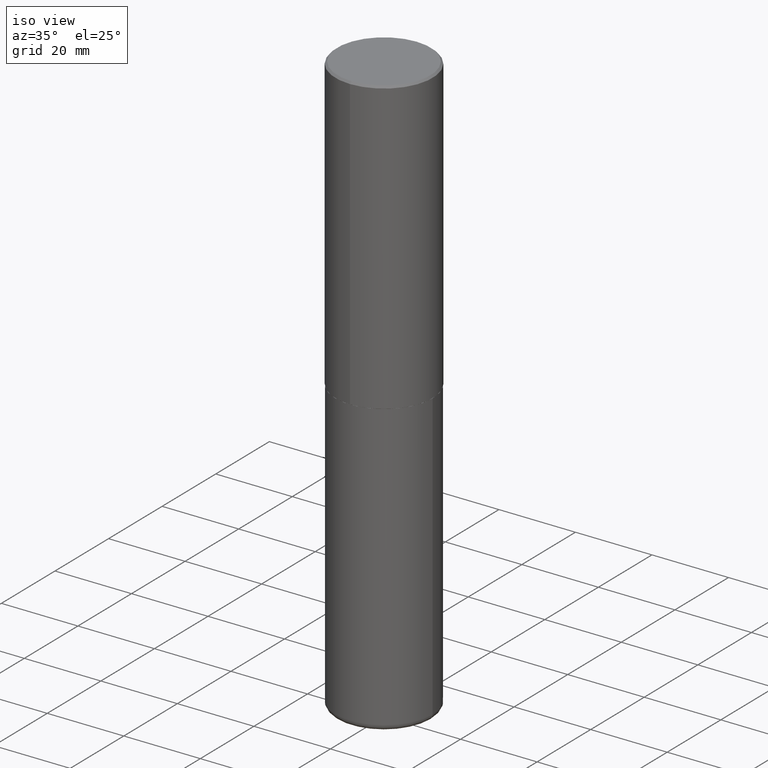
[diagram: clean part render]
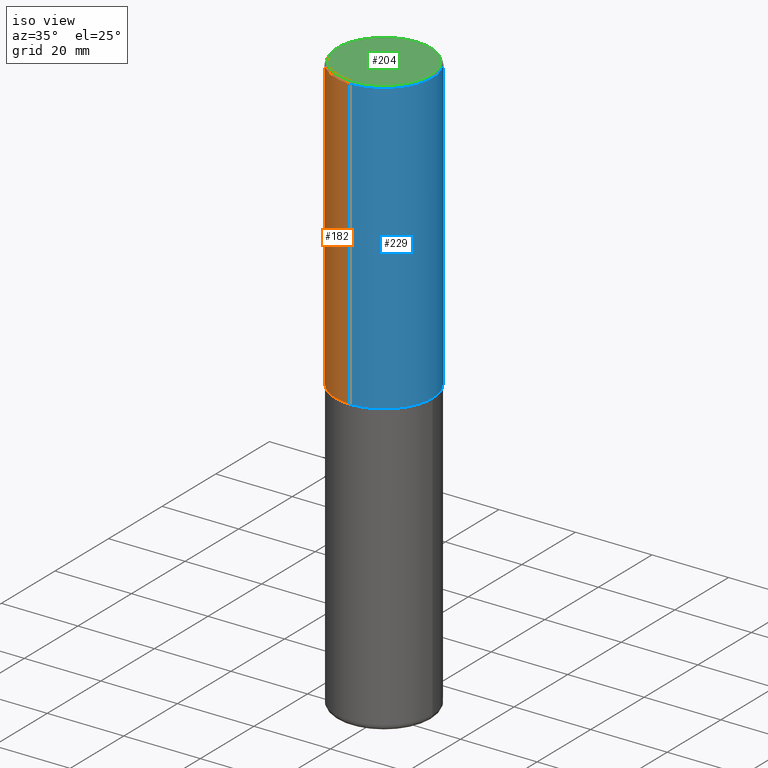
[diagram: same view with three faces highlighted in distinct colors, each labeled with its STEP entity id]
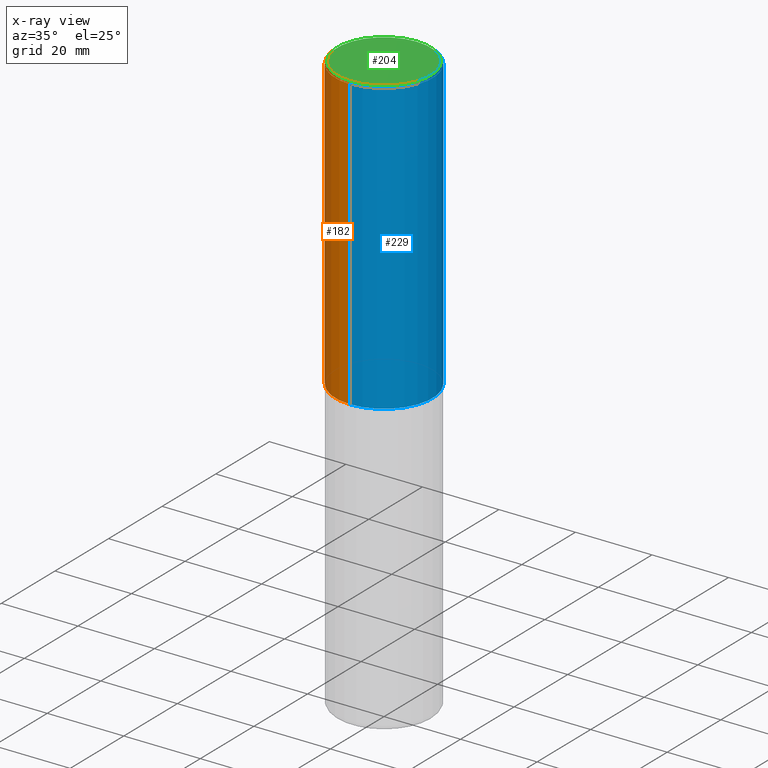
[diagram: x-ray of the same camera — body ghosted, the three highlighted faces saturated]
A machine part, iso view with three faces highlighted in distinct colors.
The next image is the same camera in x-ray (body ghosted, the three faces saturated) — at least one of them is partly hidden behind the body in this view.
Their STEP definitions:

[orange] entity #182 — the highlighted cylindrical surface (partial cylindrical patch) has radius 12.7 mm, axis along (-0, 0, 1).
#15 = CARTESIAN_POINT ( 'NONE',  ( -3.491481338843133750E-15, -0.5000000000000001110, 1.746149358764313390E-15 ) ) ;
#17 = CARTESIAN_POINT ( 'NONE',  ( 3.491481338843133355E-15, 0.4999999999999999445, -0.02000000000000185310 ) ) ;
#26 = EDGE_LOOP ( 'NONE', ( #106, #315, #75, #318 ) ) ;
#27 = DIRECTION ( 'NONE',  ( -2.444898033699712212E-29, 3.492298717528625990E-15, 1.000000000000000000 ) ) ;
#36 = VERTEX_POINT ( 'NONE', #304 ) ;
#65 = FACE_OUTER_BOUND ( 'NONE', #26, .T. ) ;
#74 = CARTESIAN_POINT ( 'NONE',  ( -3.491481338843061569E-15, -0.5000000000000107692, -2.998999999999998778 ) ) ;
#75 = ORIENTED_EDGE ( 'NONE', *, *, #90, .T. ) ;
#87 = CIRCLE ( 'NONE', #134, 0.5000000000000000000 ) ;
#90 = EDGE_CURVE ( 'NONE', #256, #36, #217, .T. ) ;
#106 = ORIENTED_EDGE ( 'NONE', *, *, #160, .F. ) ;
#109 = CARTESIAN_POINT ( 'NONE',  ( 3.552713678800539584E-15, 0.4999999999999898970, -2.999000000000001886 ) ) ;
#124 = CARTESIAN_POINT ( 'NONE',  ( 0.000000000000000000, 0.000000000000000000, 0.000000000000000000 ) ) ;
#127 = DIRECTION ( 'NONE',  ( -2.444898033699712212E-29, 3.492298717528625990E-15, 1.000000000000000000 ) ) ;
#134 = AXIS2_PLACEMENT_3D ( 'NONE', #374, #27, #376 ) ;
#140 = DIRECTION ( 'NONE',  ( -2.444898033699712212E-29, 3.492298717528625990E-15, 1.000000000000000000 ) ) ;
#144 = CARTESIAN_POINT ( 'NONE',  ( 3.552713678800501718E-15, 0.5000000000000001110, -1.746149358764313390E-15 ) ) ;
#154 = VECTOR ( 'NONE', #326, 39.37007874015748143 ) ;
#160 = EDGE_CURVE ( 'NONE', #165, #255, #306, .T. ) ;
#165 = VERTEX_POINT ( 'NONE', #109 ) ;
#166 = EDGE_CURVE ( 'NONE', #255, #36, #87, .T. ) ;
#182 = ADVANCED_FACE ( 'NONE', ( #65 ), #198, .T. ) ;
#187 = DIRECTION ( 'NONE',  ( -2.444898033699711931E-29, 3.492298717528626385E-15, 1.000000000000000000 ) ) ;
#198 = CYLINDRICAL_SURFACE ( 'NONE', #202, 0.5000000000000001110 ) ;
#202 = AXIS2_PLACEMENT_3D ( 'NONE', #124, #127, #258 ) ;
#206 = CARTESIAN_POINT ( 'NONE',  ( 7.332249203065438921E-29, -1.047340385386834930E-14, -2.999000000000000554 ) ) ;
#217 = LINE ( 'NONE', #15, #154 ) ;
#255 = VERTEX_POINT ( 'NONE', #17 ) ;
#256 = VERTEX_POINT ( 'NONE', #74 ) ;
#258 = DIRECTION ( 'NONE',  ( -6.982962677686265922E-15, -1.000000000000000000, 3.492298717528625990E-15 ) ) ;
#286 = AXIS2_PLACEMENT_3D ( 'NONE', #206, #140, #302 ) ;
#297 = CIRCLE ( 'NONE', #286, 0.5000000000000002220 ) ;
#299 = VECTOR ( 'NONE', #187, 39.37007874015748143 ) ;
#302 = DIRECTION ( 'NONE',  ( -6.982962677686266711E-15, -1.000000000000000000, 3.278217592397114284E-15 ) ) ;
#304 = CARTESIAN_POINT ( 'NONE',  ( -3.430248998885764992E-15, -0.5000000000000001110, -0.01999999999999835937 ) ) ;
#306 = LINE ( 'NONE', #144, #299 ) ;
#315 = ORIENTED_EDGE ( 'NONE', *, *, #334, .T. ) ;
#318 = ORIENTED_EDGE ( 'NONE', *, *, #166, .F. ) ;
#326 = DIRECTION ( 'NONE',  ( -2.444898033699711931E-29, 3.492298717528626385E-15, 1.000000000000000000 ) ) ;
#334 = EDGE_CURVE ( 'NONE', #165, #256, #297, .T. ) ;
#374 = CARTESIAN_POINT ( 'NONE',  ( 4.889796067399450837E-31, -6.984597435057287381E-17, -0.02000000000000010797 ) ) ;
#376 = DIRECTION ( 'NONE',  ( -6.982962677686265922E-15, -1.000000000000000000, 3.491643216902136408E-15 ) ) ;

[blue] entity #229 — the highlighted cylindrical surface (partial cylindrical patch) has radius 12.7 mm, axis along (-0, 0, 1).
#7 = EDGE_LOOP ( 'NONE', ( #361, #119, #196, #91 ) ) ;
#15 = CARTESIAN_POINT ( 'NONE',  ( -3.491481338843133750E-15, -0.5000000000000001110, 1.746149358764313390E-15 ) ) ;
#17 = CARTESIAN_POINT ( 'NONE',  ( 3.491481338843133355E-15, 0.4999999999999999445, -0.02000000000000185310 ) ) ;
#36 = VERTEX_POINT ( 'NONE', #304 ) ;
#61 = DIRECTION ( 'NONE',  ( -2.444898033699712212E-29, 3.492298717528625990E-15, 1.000000000000000000 ) ) ;
#69 = AXIS2_PLACEMENT_3D ( 'NONE', #233, #388, #356 ) ;
#74 = CARTESIAN_POINT ( 'NONE',  ( -3.491481338843061569E-15, -0.5000000000000107692, -2.998999999999998778 ) ) ;
#90 = EDGE_CURVE ( 'NONE', #256, #36, #217, .T. ) ;
#91 = ORIENTED_EDGE ( 'NONE', *, *, #90, .F. ) ;
#109 = CARTESIAN_POINT ( 'NONE',  ( 3.552713678800539584E-15, 0.4999999999999898970, -2.999000000000001886 ) ) ;
#119 = ORIENTED_EDGE ( 'NONE', *, *, #160, .T. ) ;
#131 = FACE_OUTER_BOUND ( 'NONE', #7, .T. ) ;
#144 = CARTESIAN_POINT ( 'NONE',  ( 3.552713678800501718E-15, 0.5000000000000001110, -1.746149358764313390E-15 ) ) ;
#154 = VECTOR ( 'NONE', #326, 39.37007874015748143 ) ;
#159 = DIRECTION ( 'NONE',  ( -6.982962677686265922E-15, -1.000000000000000000, 3.491643216902136408E-15 ) ) ;
#160 = EDGE_CURVE ( 'NONE', #165, #255, #306, .T. ) ;
#165 = VERTEX_POINT ( 'NONE', #109 ) ;
#188 = EDGE_CURVE ( 'NONE', #256, #165, #379, .T. ) ;
#187 = DIRECTION ( 'NONE',  ( -2.444898033699711931E-29, 3.492298717528626385E-15, 1.000000000000000000 ) ) ;
#196 = ORIENTED_EDGE ( 'NONE', *, *, #224, .F. ) ;
#217 = LINE ( 'NONE', #15, #154 ) ;
#224 = EDGE_CURVE ( 'NONE', #36, #255, #308, .T. ) ;
#229 = ADVANCED_FACE ( 'NONE', ( #131 ), #260, .T. ) ;
#233 = CARTESIAN_POINT ( 'NONE',  ( 7.332249203065438921E-29, -1.047340385386834930E-14, -2.999000000000000554 ) ) ;
#255 = VERTEX_POINT ( 'NONE', #17 ) ;
#256 = VERTEX_POINT ( 'NONE', #74 ) ;
#260 = CYLINDRICAL_SURFACE ( 'NONE', #285, 0.5000000000000001110 ) ;
#263 = DIRECTION ( 'NONE',  ( -2.444898033699712212E-29, 3.492298717528625990E-15, 1.000000000000000000 ) ) ;
#285 = AXIS2_PLACEMENT_3D ( 'NONE', #389, #263, #357 ) ;
#299 = VECTOR ( 'NONE', #187, 39.37007874015748143 ) ;
#304 = CARTESIAN_POINT ( 'NONE',  ( -3.430248998885764992E-15, -0.5000000000000001110, -0.01999999999999835937 ) ) ;
#306 = LINE ( 'NONE', #144, #299 ) ;
#308 = CIRCLE ( 'NONE', #414, 0.5000000000000000000 ) ;
#326 = DIRECTION ( 'NONE',  ( -2.444898033699711931E-29, 3.492298717528626385E-15, 1.000000000000000000 ) ) ;
#356 = DIRECTION ( 'NONE',  ( -6.982962677686266711E-15, -1.000000000000000000, 3.278217592397114284E-15 ) ) ;
#357 = DIRECTION ( 'NONE',  ( -6.982962677686265922E-15, -1.000000000000000000, 3.492298717528625990E-15 ) ) ;
#361 = ORIENTED_EDGE ( 'NONE', *, *, #188, .T. ) ;
#362 = CARTESIAN_POINT ( 'NONE',  ( 4.889796067399450837E-31, -6.984597435057287381E-17, -0.02000000000000010797 ) ) ;
#379 = CIRCLE ( 'NONE', #69, 0.5000000000000002220 ) ;
#388 = DIRECTION ( 'NONE',  ( -2.444898033699712212E-29, 3.492298717528625990E-15, 1.000000000000000000 ) ) ;
#389 = CARTESIAN_POINT ( 'NONE',  ( 0.000000000000000000, 0.000000000000000000, 0.000000000000000000 ) ) ;
#414 = AXIS2_PLACEMENT_3D ( 'NONE', #362, #61, #159 ) ;

[green] entity #204 — the highlighted planar face has unit normal (0, -0, -1).
#10 = CARTESIAN_POINT ( 'NONE',  ( 3.421651712066270057E-15, 0.4799999999999999267, -1.573466742882299844E-15 ) ) ;
#18 = DIRECTION ( 'NONE',  ( -6.982962677686265922E-15, -1.000000000000000000, 3.492298717528625990E-15 ) ) ;
#39 = DIRECTION ( 'NONE',  ( -6.982962677686265922E-15, -1.000000000000000000, 3.492298717528625990E-15 ) ) ;
#40 = EDGE_CURVE ( 'NONE', #150, #378, #63, .T. ) ;
#41 = CARTESIAN_POINT ( 'NONE',  ( 3.351822085289407153E-15, 0.4799999999999999267, -1.624885063648019971E-15 ) ) ;
#63 = CIRCLE ( 'NONE', #126, 0.4799999999999999267 ) ;
#76 = CARTESIAN_POINT ( 'NONE',  ( -2.514251026725007597E-45, 3.591362713352002573E-31, 1.028366415314403880E-16 ) ) ;
#126 = AXIS2_PLACEMENT_3D ( 'NONE', #76, #275, #18 ) ;
#150 = VERTEX_POINT ( 'NONE', #242 ) ;
#156 = ORIENTED_EDGE ( 'NONE', *, *, #348, .T. ) ;
#163 = ORIENTED_EDGE ( 'NONE', *, *, #40, .T. ) ;
#173 = DIRECTION ( 'NONE',  ( 2.444898033699711371E-29, -3.492298717528626385E-15, -1.000000000000000000 ) ) ;
#179 = AXIS2_PLACEMENT_3D ( 'NONE', #266, #396, #39 ) ;
#204 = ADVANCED_FACE ( 'NONE', ( #390 ), #212, .F. ) ;
#212 = PLANE ( 'NONE',  #339 ) ;
#214 = DIRECTION ( 'NONE',  ( 6.982962677686265922E-15, 1.000000000000000000, -3.492298717528626385E-15 ) ) ;
#215 = EDGE_LOOP ( 'NONE', ( #156, #163 ) ) ;
#242 = CARTESIAN_POINT ( 'NONE',  ( -3.361644018908049661E-15, -0.4799999999999999267, 1.779140025945180744E-15 ) ) ;
#266 = CARTESIAN_POINT ( 'NONE',  ( -2.514251026725007597E-45, 3.591362713352002573E-31, 1.028366415314403880E-16 ) ) ;
#275 = DIRECTION ( 'NONE',  ( -2.444898033699712212E-29, 3.492298717528625990E-15, 1.000000000000000000 ) ) ;
#339 = AXIS2_PLACEMENT_3D ( 'NONE', #41, #173, #214 ) ;
#348 = EDGE_CURVE ( 'NONE', #378, #150, #353, .T. ) ;
#353 = CIRCLE ( 'NONE', #179, 0.4799999999999999267 ) ;
#378 = VERTEX_POINT ( 'NONE', #10 ) ;
#390 = FACE_OUTER_BOUND ( 'NONE', #215, .T. ) ;
#396 = DIRECTION ( 'NONE',  ( -2.444898033699712212E-29, 3.492298717528625990E-15, 1.000000000000000000 ) ) ;